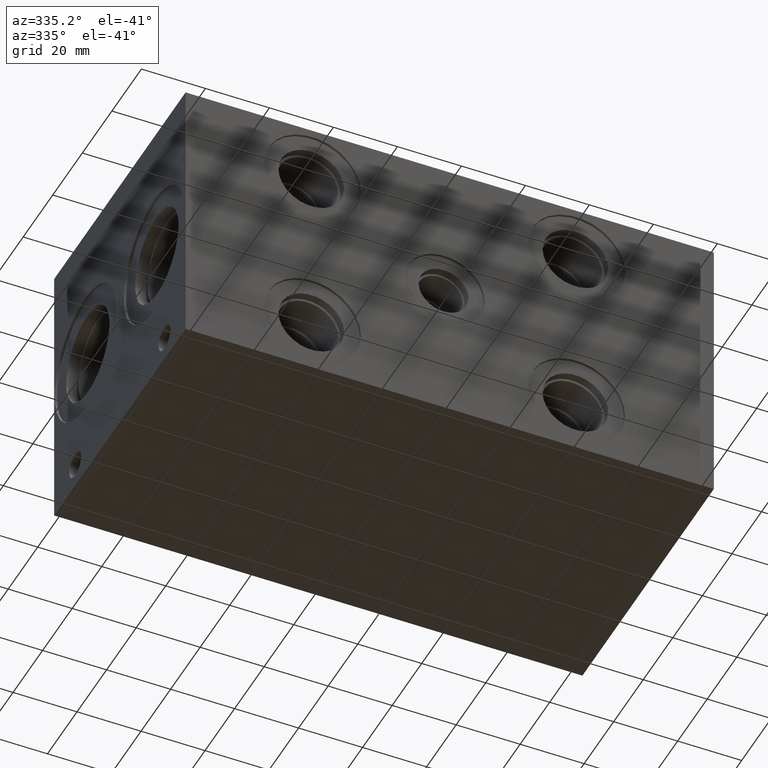
[diagram: clean part render]
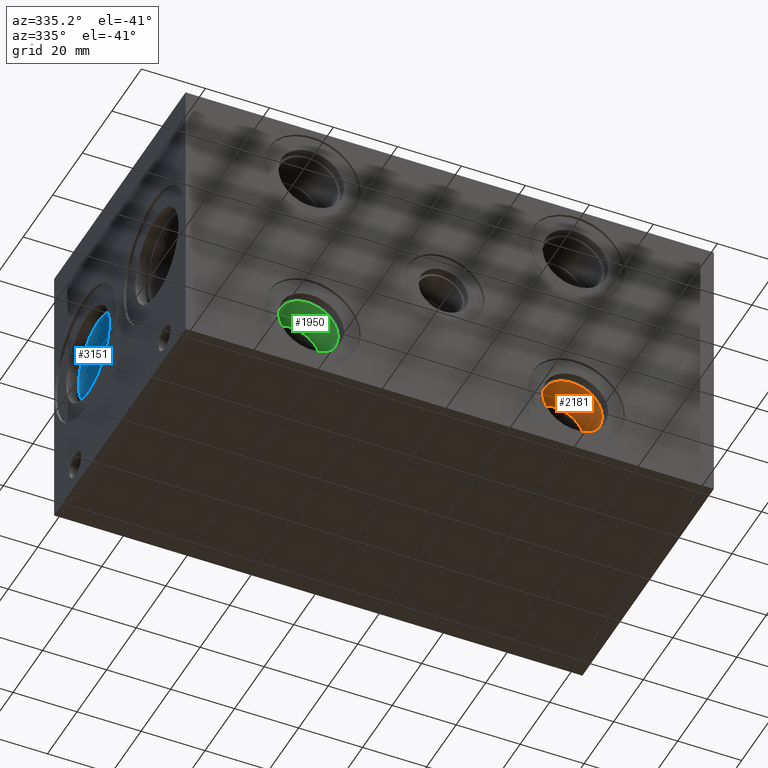
[diagram: same view with three faces highlighted in distinct colors, each labeled with its STEP entity id]
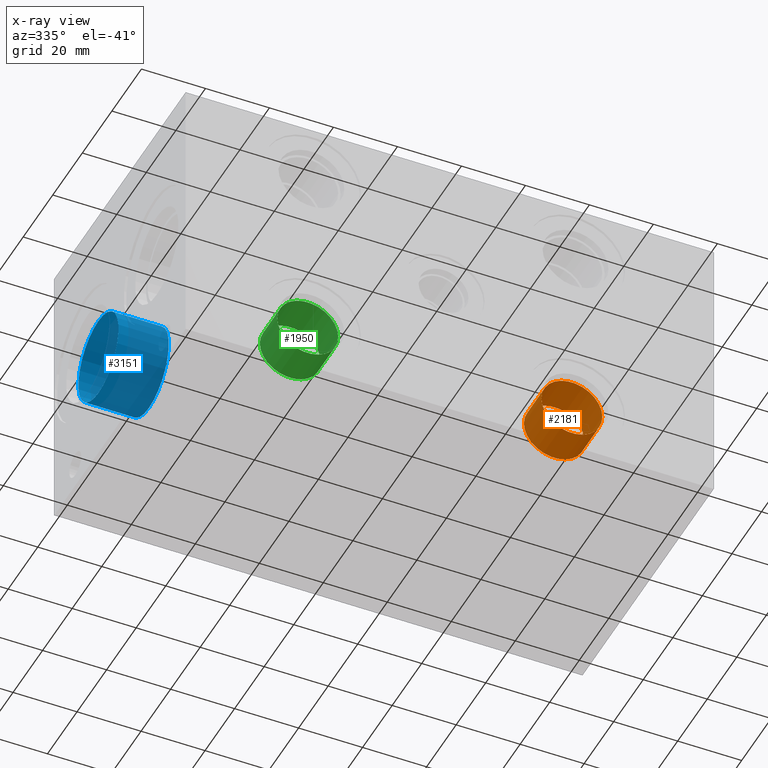
[diagram: x-ray of the same camera — body ghosted, the three highlighted faces saturated]
A machine part, auxiliary view with three faces highlighted in distinct colors.
The next image is the same camera in x-ray (body ghosted, the three faces saturated) — at least one of them is partly hidden behind the body in this view.
Their STEP definitions:

[orange] entity #2181 — the highlighted cylindrical surface (bore or boss wall) has radius 9.525 mm, axis along (0, 1, 0).
#2150=CARTESIAN_POINT('',(131.749799999999990,3.251200000000000,17.475199999999997));
#2151=VERTEX_POINT('',#2150);
#2152=CARTESIAN_POINT('',(122.224799999999990,3.251200000000000,17.475199999999997));
#2153=DIRECTION('',(0.0,1.0,0.0));
#2154=DIRECTION('',(-1.0,0.0,0.0));
#2155=AXIS2_PLACEMENT_3D('',#2152,#2153,#2154);
#2156=CIRCLE('',#2155,9.524999999999999);
#2157=EDGE_CURVE('',#2151,#2151,#2156,.T.);
#2162=CARTESIAN_POINT('',(122.224799999999990,3.251200000000000,17.475199999999997));
#2163=DIRECTION('',(0.0,1.0,0.0));
#2164=DIRECTION('',(-1.0,0.0,0.0));
#2165=AXIS2_PLACEMENT_3D('',#2162,#2163,#2164);
#2166=CYLINDRICAL_SURFACE('',#2165,9.524999999999999);
#2167=ORIENTED_EDGE('',*,*,#2157,.F.);
#2168=EDGE_LOOP('',(#2167));
#2169=FACE_OUTER_BOUND('',#2168,.T.);
#2170=CARTESIAN_POINT('',(131.749799999999990,15.087599999999997,17.475199999999997));
#2171=VERTEX_POINT('',#2170);
#2172=CARTESIAN_POINT('',(122.224799999999990,15.087599999999997,17.475199999999997));
#2173=DIRECTION('',(0.0,1.0,0.0));
#2174=DIRECTION('',(-1.0,0.0,0.0));
#2175=AXIS2_PLACEMENT_3D('',#2172,#2173,#2174);
#2176=CIRCLE('',#2175,9.524999999999999);
#2177=EDGE_CURVE('',#2171,#2171,#2176,.T.);
#2178=ORIENTED_EDGE('',*,*,#2177,.T.);
#2179=EDGE_LOOP('',(#2178));
#2180=FACE_BOUND('',#2179,.T.);
#2181=ADVANCED_FACE('',(#2169,#2180),#2166,.F.);

[blue] entity #3151 — the highlighted cylindrical surface (bore or boss wall) has radius 13.4937 mm, axis along (1, 0, 0).
#3120=CARTESIAN_POINT('',(4.089400000000000,67.817999999999984,57.943749999999994));
#3121=VERTEX_POINT('',#3120);
#3122=CARTESIAN_POINT('',(4.089400000000000,67.817999999999984,44.449999999999996));
#3123=DIRECTION('',(1.0,0.0,0.0));
#3124=DIRECTION('',(0.0,-1.0,0.0));
#3125=AXIS2_PLACEMENT_3D('',#3122,#3123,#3124);
#3126=CIRCLE('',#3125,13.493749999999999);
#3127=EDGE_CURVE('',#3121,#3121,#3126,.T.);
#3132=CARTESIAN_POINT('',(4.089400000000000,67.817999999999984,44.449999999999996));
#3133=DIRECTION('',(1.0,0.0,0.0));
#3134=DIRECTION('',(0.0,-1.0,0.0));
#3135=AXIS2_PLACEMENT_3D('',#3132,#3133,#3134);
#3136=CYLINDRICAL_SURFACE('',#3135,13.493749999999999);
#3137=ORIENTED_EDGE('',*,*,#3127,.F.);
#3138=EDGE_LOOP('',(#3137));
#3139=FACE_OUTER_BOUND('',#3138,.T.);
#3140=CARTESIAN_POINT('',(19.837399999999995,67.817999999999984,57.943749999999994));
#3141=VERTEX_POINT('',#3140);
#3142=CARTESIAN_POINT('',(19.837399999999995,67.817999999999984,44.449999999999996));
#3143=DIRECTION('',(1.0,0.0,0.0));
#3144=DIRECTION('',(0.0,-1.0,0.0));
#3145=AXIS2_PLACEMENT_3D('',#3142,#3143,#3144);
#3146=CIRCLE('',#3145,13.493749999999999);
#3147=EDGE_CURVE('',#3141,#3141,#3146,.T.);
#3148=ORIENTED_EDGE('',*,*,#3147,.T.);
#3149=EDGE_LOOP('',(#3148));
#3150=FACE_BOUND('',#3149,.T.);
#3151=ADVANCED_FACE('',(#3139,#3150),#3136,.F.);

[green] entity #1950 — the highlighted cylindrical surface (bore or boss wall) has radius 9.525 mm, axis along (0, 1, 0).
#1919=CARTESIAN_POINT('',(49.199799999999989,3.251200000000000,17.475199999999997));
#1920=VERTEX_POINT('',#1919);
#1921=CARTESIAN_POINT('',(39.674799999999991,3.251200000000000,17.475199999999997));
#1922=DIRECTION('',(0.0,1.0,0.0));
#1923=DIRECTION('',(-1.0,0.0,0.0));
#1924=AXIS2_PLACEMENT_3D('',#1921,#1922,#1923);
#1925=CIRCLE('',#1924,9.524999999999999);
#1926=EDGE_CURVE('',#1920,#1920,#1925,.T.);
#1931=CARTESIAN_POINT('',(39.674799999999991,3.251200000000000,17.475199999999997));
#1932=DIRECTION('',(0.0,1.0,0.0));
#1933=DIRECTION('',(-1.0,0.0,0.0));
#1934=AXIS2_PLACEMENT_3D('',#1931,#1932,#1933);
#1935=CYLINDRICAL_SURFACE('',#1934,9.524999999999999);
#1936=ORIENTED_EDGE('',*,*,#1926,.F.);
#1937=EDGE_LOOP('',(#1936));
#1938=FACE_OUTER_BOUND('',#1937,.T.);
#1939=CARTESIAN_POINT('',(49.199799999999989,15.087599999999997,17.475199999999997));
#1940=VERTEX_POINT('',#1939);
#1941=CARTESIAN_POINT('',(39.674799999999991,15.087599999999997,17.475199999999997));
#1942=DIRECTION('',(0.0,1.0,0.0));
#1943=DIRECTION('',(-1.0,0.0,0.0));
#1944=AXIS2_PLACEMENT_3D('',#1941,#1942,#1943);
#1945=CIRCLE('',#1944,9.524999999999999);
#1946=EDGE_CURVE('',#1940,#1940,#1945,.T.);
#1947=ORIENTED_EDGE('',*,*,#1946,.T.);
#1948=EDGE_LOOP('',(#1947));
#1949=FACE_BOUND('',#1948,.T.);
#1950=ADVANCED_FACE('',(#1938,#1949),#1935,.F.);